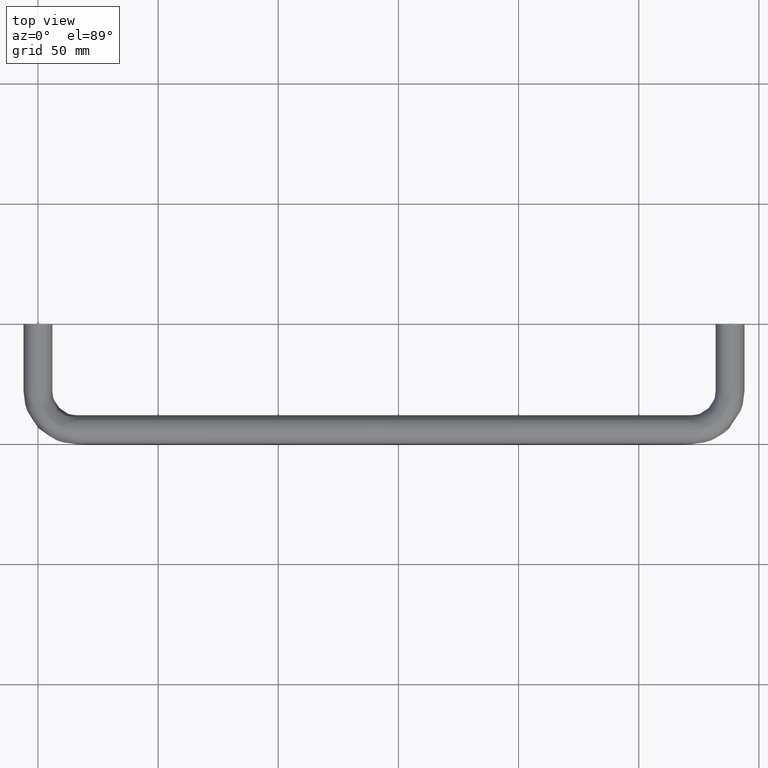
[diagram: clean part render]
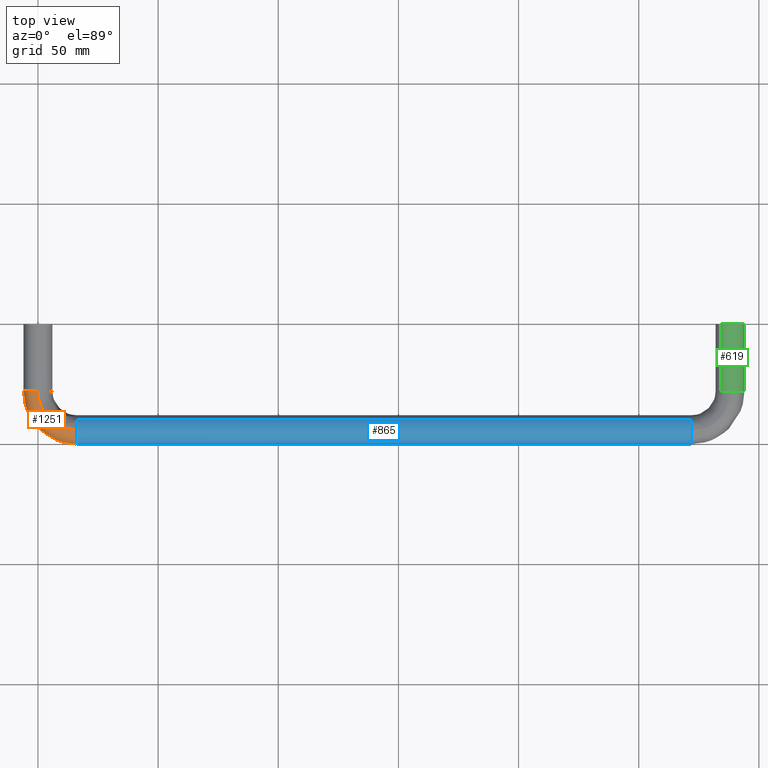
[diagram: same view with three faces highlighted in distinct colors, each labeled with its STEP entity id]
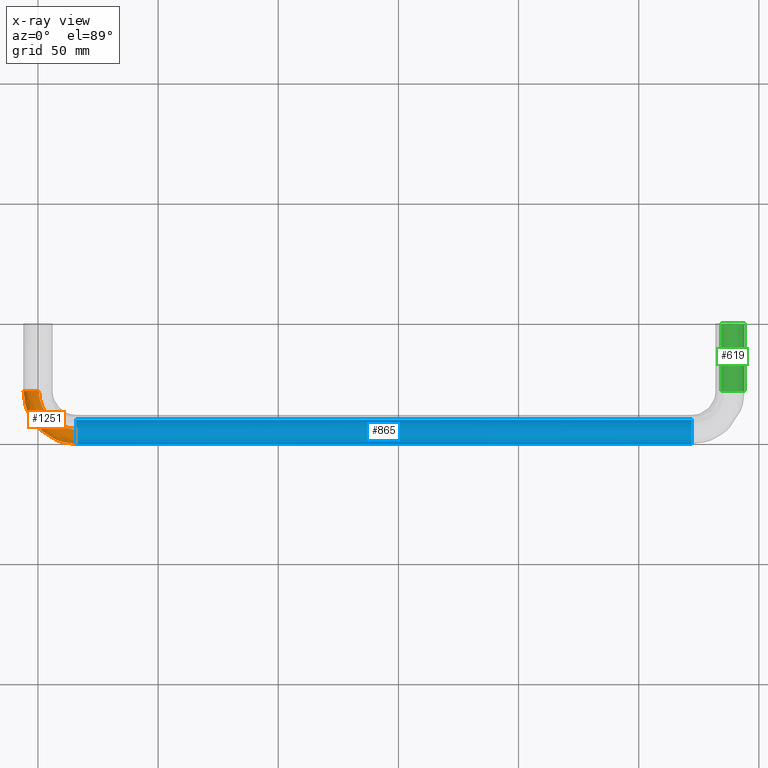
[diagram: x-ray of the same camera — body ghosted, the three highlighted faces saturated]
A machine part, top view with three faces highlighted in distinct colors.
The next image is the same camera in x-ray (body ghosted, the three faces saturated) — at least one of them is partly hidden behind the body in this view.
Their STEP definitions:

[orange] entity #1251 — the highlighted face is a freeform B-spline surface patch.
#661=CARTESIAN_POINT('',(15.999999999999989,-48.467994806515549,-4.004625127143617));
#662=VERTEX_POINT('',#661);
#668=CARTESIAN_POINT('',(15.999999997158200,-43.581600486216288,-5.985394042739838));
#669=VERTEX_POINT('',#668);
#670=CARTESIAN_POINT('',(15.999999997158199,-43.581600486216288,-5.985394042739839));
#671=CARTESIAN_POINT('',(16.000000000000004,-43.790545300404808,-6.0));
#672=CARTESIAN_POINT('',(16.0,-44.0,-6.0));
#673=CARTESIAN_POINT('',(16.000000000000004,-46.679557554470968,-5.999999999999999));
#674=CARTESIAN_POINT('',(15.999999999999986,-48.467994806515549,-4.004625127143617));
#682=(BOUNDED_CURVE()B_SPLINE_CURVE(2,(#670,#671,#672,#673,#674),.UNSPECIFIED.,.F.,.U.)B_SPLINE_CURVE_WITH_KNOTS((3,2,3),(0.237833686286240,0.250000000000000,0.383245959685825),.UNSPECIFIED.)CURVE()GEOMETRIC_REPRESENTATION_ITEM()RATIONAL_B_SPLINE_CURVE((0.972879875860633,0.985746276861130,1.0,0.843892647894924,0.854190687351880))REPRESENTATION_ITEM(''));
#683=EDGE_CURVE('',#669,#662,#682,.T.);
#817=CARTESIAN_POINT('',(15.999999998300160,-44.075396249737437,5.999526265091729));
#818=VERTEX_POINT('',#817);
#834=CARTESIAN_POINT('',(16.0,-49.999999999999993,0.0));
#835=VERTEX_POINT('',#834);
#836=CARTESIAN_POINT('',(16.0,-49.999999999999993,0.0));
#837=CARTESIAN_POINT('',(16.000000000000004,-49.999999999999986,5.925071558826640));
#838=CARTESIAN_POINT('',(15.999999998300162,-44.075396249737437,5.999526265091729));
#846=(BOUNDED_CURVE()B_SPLINE_CURVE(2,(#836,#837,#838),.UNSPECIFIED.,.F.,.U.)B_SPLINE_CURVE_WITH_KNOTS((3,3),(0.500000000000000,0.747784295309819),.UNSPECIFIED.)CURVE()GEOMETRIC_REPRESENTATION_ITEM()RATIONAL_B_SPLINE_CURVE((1.0,0.709702640701137,0.994854294235634))REPRESENTATION_ITEM(''));
#847=EDGE_CURVE('',#835,#818,#846,.T.);
#849=CARTESIAN_POINT('',(15.999999999999986,-48.467994806515549,-4.004625127143617));
#850=CARTESIAN_POINT('',(16.000000000000004,-49.999999999999993,-2.295353714534880));
#851=CARTESIAN_POINT('',(16.0,-49.999999999999993,0.0));
#859=(BOUNDED_CURVE()B_SPLINE_CURVE(2,(#849,#850,#851),.UNSPECIFIED.,.F.,.U.)B_SPLINE_CURVE_WITH_KNOTS((3,3),(0.383245959685825,0.500000000000000),.UNSPECIFIED.)CURVE()GEOMETRIC_REPRESENTATION_ITEM()RATIONAL_B_SPLINE_CURVE((0.854190687351880,0.863214133291623,1.0))REPRESENTATION_ITEM(''));
#860=EDGE_CURVE('',#662,#835,#859,.T.);
#884=CARTESIAN_POINT('',(-0.075396270194108,-28.000000006696570,5.999526264834650));
#885=VERTEX_POINT('',#884);
#942=CARTESIAN_POINT('',(-3.735087819832132,-28.0,-4.695648941109377));
#943=VERTEX_POINT('',#942);
#949=CARTESIAN_POINT('',(-5.999999999999996,-28.0,0.0));
#950=VERTEX_POINT('',#949);
#951=CARTESIAN_POINT('',(-3.735087819832132,-28.000000000000004,-4.695648941109377));
#952=CARTESIAN_POINT('',(-5.999999999999996,-27.999999999999996,-2.894056444895313));
#953=CARTESIAN_POINT('',(-5.999999999999996,-28.0,0.0));
#961=(BOUNDED_CURVE()B_SPLINE_CURVE(2,(#951,#952,#953),.UNSPECIFIED.,.F.,.U.)B_SPLINE_CURVE_WITH_KNOTS((3,3),(0.357863877391859,0.500000000000000),.UNSPECIFIED.)CURVE()GEOMETRIC_REPRESENTATION_ITEM()RATIONAL_B_SPLINE_CURVE((0.856305618643937,0.833477174158553,1.0))REPRESENTATION_ITEM(''));
#962=EDGE_CURVE('',#943,#950,#961,.T.);
#964=CARTESIAN_POINT('',(-5.999999999999996,-28.0,0.0));
#965=CARTESIAN_POINT('',(-5.999999999999996,-28.0,5.925071518417884));
#966=CARTESIAN_POINT('',(-0.075396270194108,-28.000000006696574,5.999526264834650));
#974=(BOUNDED_CURVE()B_SPLINE_CURVE(2,(#964,#965,#966),.UNSPECIFIED.,.F.,.U.)B_SPLINE_CURVE_WITH_KNOTS((3,3),(0.500000000000000,0.747784294110507),.UNSPECIFIED.)CURVE()GEOMETRIC_REPRESENTATION_ITEM()RATIONAL_B_SPLINE_CURVE((1.0,0.709702642106218,0.994854291475283))REPRESENTATION_ITEM(''));
#975=EDGE_CURVE('',#950,#885,#974,.T.);
#1013=CARTESIAN_POINT('',(0.418399511654267,-28.000000001695611,-5.985394042888693));
#1014=VERTEX_POINT('',#1013);
#1028=CARTESIAN_POINT('',(0.418399511654267,-28.000000001695611,-5.985394042888693));
#1029=CARTESIAN_POINT('',(0.209454697457947,-28.0,-6.0));
#1030=CARTESIAN_POINT('',(3.428898E-015,-28.0,-6.0));
#1031=CARTESIAN_POINT('',(-2.095293800538441,-28.0,-5.999999999999999));
#1032=CARTESIAN_POINT('',(-3.735087819832132,-28.000000000000004,-4.695648941109377));
#1040=(BOUNDED_CURVE()B_SPLINE_CURVE(2,(#1028,#1029,#1030,#1031,#1032),.UNSPECIFIED.,.F.,.U.)B_SPLINE_CURVE_WITH_KNOTS((3,2,3),(0.237833686408614,0.250000000000000,0.357863877391859),.UNSPECIFIED.)CURVE()GEOMETRIC_REPRESENTATION_ITEM()RATIONAL_B_SPLINE_CURVE((0.972879876119464,0.985746277004500,1.0,0.873629607027995,0.856305618643937))REPRESENTATION_ITEM(''));
#1041=EDGE_CURVE('',#1014,#943,#1040,.T.);
#1182=CARTESIAN_POINT('',(0.546684056710177,-26.922813434148562,-5.979047730731183));
#1183=CARTESIAN_POINT('',(-0.691927203376076,-44.691927661728442,-5.979047730731180));
#1184=CARTESIAN_POINT('',(17.077186990192139,-43.453315913710789,-5.979047730731184));
#1185=CARTESIAN_POINT('',(0.501269806441444,-26.919647795105952,-5.982230042808086));
#1186=CARTESIAN_POINT('',(-0.740981488052807,-44.740981947752175,-5.982230042808087));
#1187=CARTESIAN_POINT('',(17.080352630481794,-43.498730163892596,-5.982230042808089));
#1188=CARTESIAN_POINT('',(0.285231963537030,-26.904588693037091,-5.997368459328781));
#1189=CARTESIAN_POINT('',(-0.974335155328387,-44.974335621435536,-5.997368459328783));
#1190=CARTESIAN_POINT('',(17.095411738482944,-43.714768006383508,-5.997368459328781));
#1191=CARTESIAN_POINT('',(0.113943897119562,-26.892648912299236,-5.999526265222896));
#1192=CARTESIAN_POINT('',(-1.159352270486051,-45.159352741673686,-5.999526265222896));
#1193=CARTESIAN_POINT('',(17.107351523924276,-43.886056072473103,-5.999526265222895));
#1194=CARTESIAN_POINT('',(-5.871059703111108,-26.475459132552292,-6.074922504523007));
#1195=CARTESIAN_POINT('',(-7.624064748611073,-51.624065397316620,-6.074922504523005));
#1196=CARTESIAN_POINT('',(17.524541468016576,-49.871059661247941,-6.074922504523006));
#1197=CARTESIAN_POINT('',(-5.946273435613747,-26.470216295188671,-0.075396239300112));
#1198=CARTESIAN_POINT('',(-7.705306997992081,-51.705307648928503,-0.075396239300112));
#1199=CARTESIAN_POINT('',(17.529784307445532,-49.946273393606596,-0.075396239300112));
#1200=CARTESIAN_POINT('',(-6.021487168116381,-26.464973457825039,5.924130025922782));
#1201=CARTESIAN_POINT('',(-7.786549247373084,-51.786549900540393,5.924130025922781));
#1202=CARTESIAN_POINT('',(17.535027146874498,-50.021487125965294,5.924130025922783));
#1203=CARTESIAN_POINT('',(0.007550477112087,-26.885232668229197,6.000080985255792));
#1204=CARTESIAN_POINT('',(-1.274273315794397,-45.274273790137705,6.000080985255791));
#1205=CARTESIAN_POINT('',(17.114767770915851,-43.992449492276926,6.000080985255790));
#1206=CARTESIAN_POINT('',(0.051316947103911,-26.888283447342413,6.000632334505557));
#1207=CARTESIAN_POINT('',(-1.226998883968037,-45.226999357013220,6.000632334505557));
#1208=CARTESIAN_POINT('',(17.111716990600804,-43.948683022368868,6.000632334505555));
#1216=(BOUNDED_SURFACE()B_SPLINE_SURFACE(2,2,((#1182,#1185,#1188,#1191,#1194,#1197,#1200,#1203,#1206),(#1183,#1186,#1189,#1192,#1195,#1198,#1201,#1204,#1207),(#1184,#1187,#1190,#1193,#1196,#1199,#1202,#1205,#1208)),.UNSPECIFIED.,.F.,.F.,.U.)B_SPLINE_SURFACE_WITH_KNOTS((3,3),(3,1,2,2,1,3),(0.0,40.091364059811198),(0.0,0.103626067512417,0.501270708166745,10.442396205121030,20.383521702075310,20.487274607661259),.UNSPECIFIED.)GEOMETRIC_REPRESENTATION_ITEM()RATIONAL_B_SPLINE_SURFACE(((0.896240631281229,0.898830865331659,0.911360612797192,0.922164430830710,0.652068722409428,0.922164430830710,0.652068722409428,0.924983348522031,0.927802266213351),(0.588135470606115,0.589835246837027,0.598057579841146,0.605147314876259,0.427903769965834,0.605147314876259,0.427903769965834,0.606997159019806,0.608847003163354),(0.896240642493540,0.898830876576375,0.911360624198660,0.922164442367337,0.652068730567055,0.922164442367337,0.652068730567055,0.924983360093924,0.927802277820511)))REPRESENTATION_ITEM('')SURFACE());
#1217=ORIENTED_EDGE('',*,*,#683,.T.);
#1218=ORIENTED_EDGE('',*,*,#860,.T.);
#1219=ORIENTED_EDGE('',*,*,#847,.T.);
#1220=CARTESIAN_POINT('',(-0.075396270194108,-28.000000006696570,5.999526264834651));
#1221=CARTESIAN_POINT('',(-0.075396225906964,-44.075396235900442,5.999526265222895));
#1222=CARTESIAN_POINT('',(15.999999998300167,-44.075396249737437,5.999526265091729));
#1230=(BOUNDED_CURVE()B_SPLINE_CURVE(2,(#1220,#1221,#1222),.UNSPECIFIED.,.F.,.U.)B_SPLINE_CURVE_WITH_KNOTS((3,3),(-1.744561812438314,-0.255438186907095),.UNSPECIFIED.)CURVE()GEOMETRIC_REPRESENTATION_ITEM()RATIONAL_B_SPLINE_CURVE((0.894678509733661,0.632633241626431,0.894678509964042))REPRESENTATION_ITEM(''));
#1231=EDGE_CURVE('',#885,#818,#1230,.T.);
#1232=ORIENTED_EDGE('',*,*,#1231,.F.);
#1233=ORIENTED_EDGE('',*,*,#975,.F.);
#1234=ORIENTED_EDGE('',*,*,#962,.F.);
#1235=ORIENTED_EDGE('',*,*,#1041,.F.);
#1236=CARTESIAN_POINT('',(0.418399511654267,-28.000000001695614,-5.985394042888692));
#1237=CARTESIAN_POINT('',(0.418399512843871,-43.581600484863735,-5.985394043042593));
#1238=CARTESIAN_POINT('',(15.999999997158193,-43.581600486216296,-5.985394042739838));
#1246=(BOUNDED_CURVE()B_SPLINE_CURVE(2,(#1236,#1237,#1238),.UNSPECIFIED.,.F.,.U.)B_SPLINE_CURVE_WITH_KNOTS((3,3),(-1.744561813086419,-0.255438187068496),.UNSPECIFIED.)CURVE()GEOMETRIC_REPRESENTATION_ITEM()RATIONAL_B_SPLINE_CURVE((0.874553433334360,0.618402663381941,0.874553433281065))REPRESENTATION_ITEM(''));
#1247=EDGE_CURVE('',#1014,#669,#1246,.T.);
#1248=ORIENTED_EDGE('',*,*,#1247,.T.);
#1249=EDGE_LOOP('',(#1217,#1218,#1219,#1232,#1233,#1234,#1235,#1248));
#1250=FACE_OUTER_BOUND('',#1249,.T.);
#1251=ADVANCED_FACE('',(#1250),#1216,.T.);

[blue] entity #865 — the highlighted face is a freeform B-spline surface patch.
#644=CARTESIAN_POINT('',(272.0,-48.467994806515520,-4.004625127143624));
#645=VERTEX_POINT('',#644);
#661=CARTESIAN_POINT('',(15.999999999999989,-48.467994806515549,-4.004625127143617));
#662=VERTEX_POINT('',#661);
#663=CARTESIAN_POINT('',(15.999999999999989,-48.467994806515549,-4.004625127143617));
#664=CARTESIAN_POINT('',(272.0,-48.467994806515520,-4.004625127143624));
#665=QUASI_UNIFORM_CURVE('',1,(#663,#664),.UNSPECIFIED.,.F.,.U.);
#666=EDGE_CURVE('',#662,#645,#665,.T.);
#700=CARTESIAN_POINT('',(16.0,-40.024279710704569,4.493734324733120));
#701=VERTEX_POINT('',#700);
#715=CARTESIAN_POINT('',(272.0,-40.024279710704540,4.493734324733110));
#716=VERTEX_POINT('',#715);
#717=CARTESIAN_POINT('',(16.0,-40.024279710704569,4.493734324733120));
#718=CARTESIAN_POINT('',(272.0,-40.024279710704540,4.493734324733110));
#719=QUASI_UNIFORM_CURVE('',1,(#717,#718),.UNSPECIFIED.,.F.,.U.);
#720=EDGE_CURVE('',#701,#716,#719,.T.);
#753=CARTESIAN_POINT('',(9.599999997004861,-40.024279710705578,4.493734324734011));
#754=CARTESIAN_POINT('',(9.599999997004861,-44.518014035439599,8.469454614028436));
#755=CARTESIAN_POINT('',(9.599999997004861,-48.493734324734007,3.975720289294424));
#756=CARTESIAN_POINT('',(9.599999997004860,-52.034080247159984,-0.025912832602382));
#757=CARTESIAN_POINT('',(9.599999997004861,-48.467994806516181,-4.004625127142923));
#758=CARTESIAN_POINT('',(278.560000003448520,-40.024279710705542,4.493734324734011));
#759=CARTESIAN_POINT('',(278.560000003448580,-44.518014035439549,8.469454614028436));
#760=CARTESIAN_POINT('',(278.560000003448520,-48.493734324733978,3.975720289294424));
#761=CARTESIAN_POINT('',(278.560000003448520,-52.034080247159956,-0.025912832602382));
#762=CARTESIAN_POINT('',(278.560000003448520,-48.467994806516131,-4.004625127142923));
#770=(BOUNDED_SURFACE()B_SPLINE_SURFACE(2,1,((#753,#758),(#754,#759),(#755,#760),(#756,#761),(#757,#762)),.UNSPECIFIED.,.F.,.F.,.U.)B_SPLINE_SURFACE_WITH_KNOTS((3,2,3),(2,2),(0.0,9.941125496954280,19.086960954152222),(0.0,268.960000006443690),.UNSPECIFIED.)GEOMETRIC_REPRESENTATION_ITEM()RATIONAL_B_SPLINE_SURFACE(((1.0,1.0),(0.707106781186548,0.707106781186548),(1.0,1.0),(0.730538238691624,0.730538238691624),(0.956886118190660,0.956886118190660)))REPRESENTATION_ITEM('')SURFACE());
#771=CARTESIAN_POINT('',(272.0,-49.999999999999993,0.0));
#772=VERTEX_POINT('',#771);
#773=CARTESIAN_POINT('',(272.0,-48.467994806515520,-4.004625127143624));
#774=CARTESIAN_POINT('',(272.000000000000060,-49.999999999999993,-2.295353714534892));
#775=CARTESIAN_POINT('',(272.0,-49.999999999999993,0.0));
#783=(BOUNDED_CURVE()B_SPLINE_CURVE(2,(#773,#774,#775),.UNSPECIFIED.,.F.,.U.)B_SPLINE_CURVE_WITH_KNOTS((3,3),(0.383245959685825,0.500000000000000),.UNSPECIFIED.)CURVE()GEOMETRIC_REPRESENTATION_ITEM()RATIONAL_B_SPLINE_CURVE((0.854190687351879,0.863214133291622,1.0))REPRESENTATION_ITEM(''));
#784=EDGE_CURVE('',#645,#772,#783,.T.);
#785=ORIENTED_EDGE('',*,*,#784,.T.);
#786=CARTESIAN_POINT('',(272.000000003291400,-44.418399524233124,5.985394042009387));
#787=VERTEX_POINT('',#786);
#788=CARTESIAN_POINT('',(272.0,-49.999999999999993,0.0));
#789=CARTESIAN_POINT('',(272.0,-49.999999999999986,5.595221055898364));
#790=CARTESIAN_POINT('',(272.000000003291400,-44.418399524233124,5.985394042009387));
#798=(BOUNDED_CURVE()B_SPLINE_CURVE(2,(#788,#789,#790),.UNSPECIFIED.,.F.,.U.)B_SPLINE_CURVE_WITH_KNOTS((3,3),(0.500000000000000,0.737833685685740),.UNSPECIFIED.)CURVE()GEOMETRIC_REPRESENTATION_ITEM()RATIONAL_B_SPLINE_CURVE((1.0,0.721360505028947,0.972879874590524))REPRESENTATION_ITEM(''));
#799=EDGE_CURVE('',#772,#787,#798,.T.);
#800=ORIENTED_EDGE('',*,*,#799,.T.);
#801=CARTESIAN_POINT('',(272.000000003291290,-44.418399524233124,5.985394042009387));
#802=CARTESIAN_POINT('',(272.000000000000110,-44.209454710082873,6.0));
#803=CARTESIAN_POINT('',(272.0,-44.0,6.0));
#804=CARTESIAN_POINT('',(272.000000000000060,-41.726803347826575,6.0));
#805=CARTESIAN_POINT('',(272.0,-40.024279710704540,4.493734324733110));
#813=(BOUNDED_CURVE()B_SPLINE_CURVE(2,(#801,#802,#803,#804,#805),.UNSPECIFIED.,.F.,.U.)B_SPLINE_CURVE_WITH_KNOTS((3,2,3),(0.737833685685739,0.750000000000000,0.865779888059640),.UNSPECIFIED.)CURVE()GEOMETRIC_REPRESENTATION_ITEM()RATIONAL_B_SPLINE_CURVE((0.972879874590522,0.985746276157600,1.0,0.864355423649403,0.854350158224962))REPRESENTATION_ITEM(''));
#814=EDGE_CURVE('',#787,#716,#813,.T.);
#815=ORIENTED_EDGE('',*,*,#814,.T.);
#816=ORIENTED_EDGE('',*,*,#720,.F.);
#817=CARTESIAN_POINT('',(15.999999998300160,-44.075396249737437,5.999526265091729));
#818=VERTEX_POINT('',#817);
#819=CARTESIAN_POINT('',(15.999999998300163,-44.075396249737437,5.999526265091729));
#820=CARTESIAN_POINT('',(16.000000000000004,-44.037699618389894,6.0));
#821=CARTESIAN_POINT('',(16.0,-44.0,6.0));
#822=CARTESIAN_POINT('',(16.000000000000004,-41.726803347826575,6.000000000000001));
#823=CARTESIAN_POINT('',(16.000000000000004,-40.024279710704569,4.493734324733120));
#831=(BOUNDED_CURVE()B_SPLINE_CURVE(2,(#819,#820,#821,#822,#823),.UNSPECIFIED.,.F.,.U.)B_SPLINE_CURVE_WITH_KNOTS((3,2,3),(0.747784295309819,0.750000000000000,0.865779888059639),.UNSPECIFIED.)CURVE()GEOMETRIC_REPRESENTATION_ITEM()RATIONAL_B_SPLINE_CURVE((0.994854294235636,0.997404140485412,1.0,0.864355423649404,0.854350158224962))REPRESENTATION_ITEM(''));
#832=EDGE_CURVE('',#818,#701,#831,.T.);
#833=ORIENTED_EDGE('',*,*,#832,.F.);
#834=CARTESIAN_POINT('',(16.0,-49.999999999999993,0.0));
#835=VERTEX_POINT('',#834);
#836=CARTESIAN_POINT('',(16.0,-49.999999999999993,0.0));
#837=CARTESIAN_POINT('',(16.000000000000004,-49.999999999999986,5.925071558826640));
#838=CARTESIAN_POINT('',(15.999999998300162,-44.075396249737437,5.999526265091729));
#846=(BOUNDED_CURVE()B_SPLINE_CURVE(2,(#836,#837,#838),.UNSPECIFIED.,.F.,.U.)B_SPLINE_CURVE_WITH_KNOTS((3,3),(0.500000000000000,0.747784295309819),.UNSPECIFIED.)CURVE()GEOMETRIC_REPRESENTATION_ITEM()RATIONAL_B_SPLINE_CURVE((1.0,0.709702640701137,0.994854294235634))REPRESENTATION_ITEM(''));
#847=EDGE_CURVE('',#835,#818,#846,.T.);
#848=ORIENTED_EDGE('',*,*,#847,.F.);
#849=CARTESIAN_POINT('',(15.999999999999986,-48.467994806515549,-4.004625127143617));
#850=CARTESIAN_POINT('',(16.000000000000004,-49.999999999999993,-2.295353714534880));
#851=CARTESIAN_POINT('',(16.0,-49.999999999999993,0.0));
#859=(BOUNDED_CURVE()B_SPLINE_CURVE(2,(#849,#850,#851),.UNSPECIFIED.,.F.,.U.)B_SPLINE_CURVE_WITH_KNOTS((3,3),(0.383245959685825,0.500000000000000),.UNSPECIFIED.)CURVE()GEOMETRIC_REPRESENTATION_ITEM()RATIONAL_B_SPLINE_CURVE((0.854190687351880,0.863214133291623,1.0))REPRESENTATION_ITEM(''));
#860=EDGE_CURVE('',#662,#835,#859,.T.);
#861=ORIENTED_EDGE('',*,*,#860,.F.);
#862=ORIENTED_EDGE('',*,*,#666,.T.);
#863=EDGE_LOOP('',(#785,#800,#815,#816,#833,#848,#861,#862));
#864=FACE_OUTER_BOUND('',#863,.T.);
#865=ADVANCED_FACE('',(#864),#770,.T.);

[green] entity #619 — the highlighted face is a freeform B-spline surface patch.
#428=CARTESIAN_POINT('',(291.735087819832070,-28.0,-4.695648941109387));
#429=VERTEX_POINT('',#428);
#460=CARTESIAN_POINT('',(284.264912180167930,-28.0,4.695648941109382));
#461=VERTEX_POINT('',#460);
#475=CARTESIAN_POINT('',(284.264912180169920,3.394507E-014,4.695648941111008));
#476=VERTEX_POINT('',#475);
#477=CARTESIAN_POINT('',(284.264912180167930,-28.0,4.695648941109382));
#478=CARTESIAN_POINT('',(284.264912180169920,3.394507E-014,4.695648941111008));
#479=QUASI_UNIFORM_CURVE('',1,(#477,#478),.UNSPECIFIED.,.F.,.U.);
#480=EDGE_CURVE('',#461,#476,#479,.T.);
#497=CARTESIAN_POINT('',(291.735087819830080,3.450018E-014,-4.695648941110990));
#498=VERTEX_POINT('',#497);
#514=CARTESIAN_POINT('',(291.735087819832070,-28.0,-4.695648941109387));
#515=CARTESIAN_POINT('',(291.735087819830080,3.450018E-014,-4.695648941110990));
#516=QUASI_UNIFORM_CURVE('',1,(#514,#515),.UNSPECIFIED.,.F.,.U.);
#517=EDGE_CURVE('',#429,#498,#516,.T.);
#522=CARTESIAN_POINT('',(284.264912180174290,-28.700000002556170,4.695648941114484));
#523=CARTESIAN_POINT('',(288.960561121288830,-28.700000002556166,8.430736760940201));
#524=CARTESIAN_POINT('',(292.695648941114480,-28.700000002556170,3.735087819825715));
#525=CARTESIAN_POINT('',(296.430736760940190,-28.700000002556166,-0.960561121288768));
#526=CARTESIAN_POINT('',(291.735087819825710,-28.700000002556170,-4.695648941114484));
#527=CARTESIAN_POINT('',(284.264912180174290,0.717500000063939,4.695648941114484));
#528=CARTESIAN_POINT('',(288.960561121288830,0.717500000063939,8.430736760940201));
#529=CARTESIAN_POINT('',(292.695648941114480,0.717500000063939,3.735087819825715));
#530=CARTESIAN_POINT('',(296.430736760940190,0.717500000063940,-0.960561121288768));
#531=CARTESIAN_POINT('',(291.735087819825710,0.717500000063940,-4.695648941114484));
#539=(BOUNDED_SURFACE()B_SPLINE_SURFACE(2,1,((#522,#527),(#523,#528),(#524,#529),(#525,#530),(#526,#531)),.UNSPECIFIED.,.F.,.F.,.U.)B_SPLINE_SURFACE_WITH_KNOTS((3,2,3),(2,2),(0.0,9.941125496954339,19.882250993908681),(0.0,29.417500002620109),.UNSPECIFIED.)GEOMETRIC_REPRESENTATION_ITEM()RATIONAL_B_SPLINE_SURFACE(((1.0,1.0),(0.707106781186548,0.707106781186548),(1.0,1.0),(0.707106781186548,0.707106781186548),(1.0,1.0)))REPRESENTATION_ITEM('')SURFACE());
#540=CARTESIAN_POINT('',(294.0,-28.0,0.0));
#541=VERTEX_POINT('',#540);
#542=CARTESIAN_POINT('',(291.735087819832070,-27.999999999999996,-4.695648941109387));
#543=CARTESIAN_POINT('',(294.000000000000060,-28.000000000000007,-2.894056444895332));
#544=CARTESIAN_POINT('',(294.0,-28.0,0.0));
#552=(BOUNDED_CURVE()B_SPLINE_CURVE(2,(#542,#543,#544),.UNSPECIFIED.,.F.,.U.)B_SPLINE_CURVE_WITH_KNOTS((3,3),(0.357863877391858,0.500000000000000),.UNSPECIFIED.)CURVE()GEOMETRIC_REPRESENTATION_ITEM()RATIONAL_B_SPLINE_CURVE((0.856305618643938,0.833477174158552,1.0))REPRESENTATION_ITEM(''));
#553=EDGE_CURVE('',#429,#541,#552,.T.);
#554=ORIENTED_EDGE('',*,*,#553,.F.);
#555=ORIENTED_EDGE('',*,*,#517,.T.);
#556=CARTESIAN_POINT('',(294.0,3.469447E-014,0.0));
#557=VERTEX_POINT('',#556);
#558=CARTESIAN_POINT('',(291.735087819830140,3.450018E-014,-4.695648941110990));
#559=CARTESIAN_POINT('',(294.000000000000060,3.469447E-014,-2.894056444898505));
#560=CARTESIAN_POINT('',(294.0,3.469447E-014,0.0));
#568=(BOUNDED_CURVE()B_SPLINE_CURVE(2,(#558,#559,#560),.UNSPECIFIED.,.F.,.U.)B_SPLINE_CURVE_WITH_KNOTS((3,3),(0.357863877391729,0.500000000000000),.UNSPECIFIED.)CURVE()GEOMETRIC_REPRESENTATION_ITEM()RATIONAL_B_SPLINE_CURVE((0.856305618643979,0.833477174158400,1.0))REPRESENTATION_ITEM(''));
#569=EDGE_CURVE('',#498,#557,#568,.T.);
#570=ORIENTED_EDGE('',*,*,#569,.T.);
#571=CARTESIAN_POINT('',(294.0,3.469447E-014,0.0));
#572=CARTESIAN_POINT('',(294.0,3.469447E-014,6.0));
#573=CARTESIAN_POINT('',(288.0,3.469447E-014,6.0));
#574=CARTESIAN_POINT('',(285.904706199464500,3.469447E-014,6.0));
#575=CARTESIAN_POINT('',(284.264912180169860,3.394507E-014,4.695648941111008));
#583=(BOUNDED_CURVE()B_SPLINE_CURVE(2,(#571,#572,#573,#574,#575),.UNSPECIFIED.,.F.,.U.)B_SPLINE_CURVE_WITH_KNOTS((3,2,3),(0.500000000000000,0.750000000000000,0.857863877391726),.UNSPECIFIED.)CURVE()GEOMETRIC_REPRESENTATION_ITEM()RATIONAL_B_SPLINE_CURVE((1.0,0.707106781186548,1.0,0.873629607028151,0.856305618643980))REPRESENTATION_ITEM(''));
#584=EDGE_CURVE('',#557,#476,#583,.T.);
#585=ORIENTED_EDGE('',*,*,#584,.T.);
#586=ORIENTED_EDGE('',*,*,#480,.F.);
#587=CARTESIAN_POINT('',(288.418399516672080,-28.000000001374751,5.985394042537922));
#588=VERTEX_POINT('',#587);
#589=CARTESIAN_POINT('',(288.418399516672140,-28.000000001374751,5.985394042537922));
#590=CARTESIAN_POINT('',(288.209454702494270,-28.000000000000004,6.0));
#591=CARTESIAN_POINT('',(288.0,-28.0,6.0));
#592=CARTESIAN_POINT('',(285.904706199461540,-27.999999999999993,5.999999999999999));
#593=CARTESIAN_POINT('',(284.264912180167810,-28.000000000000007,4.695648941109382));
#601=(BOUNDED_CURVE()B_SPLINE_CURVE(2,(#589,#590,#591,#592,#593),.UNSPECIFIED.,.F.,.U.)B_SPLINE_CURVE_WITH_KNOTS((3,2,3),(0.737833686120246,0.750000000000000,0.857863877391860),.UNSPECIFIED.)CURVE()GEOMETRIC_REPRESENTATION_ITEM()RATIONAL_B_SPLINE_CURVE((0.972879875509541,0.985746276666656,1.0,0.873629607027995,0.856305618643937))REPRESENTATION_ITEM(''));
#602=EDGE_CURVE('',#588,#461,#601,.T.);
#603=ORIENTED_EDGE('',*,*,#602,.F.);
#604=CARTESIAN_POINT('',(294.0,-28.0,0.0));
#605=CARTESIAN_POINT('',(294.000000000000060,-28.000000000000007,5.595221070068924));
#606=CARTESIAN_POINT('',(288.418399516672140,-28.000000001374747,5.985394042537923));
#614=(BOUNDED_CURVE()B_SPLINE_CURVE(2,(#604,#605,#606),.UNSPECIFIED.,.F.,.U.)B_SPLINE_CURVE_WITH_KNOTS((3,3),(0.500000000000000,0.737833686120246),.UNSPECIFIED.)CURVE()GEOMETRIC_REPRESENTATION_ITEM()RATIONAL_B_SPLINE_CURVE((1.0,0.721360504519892,0.972879875509541))REPRESENTATION_ITEM(''));
#615=EDGE_CURVE('',#541,#588,#614,.T.);
#616=ORIENTED_EDGE('',*,*,#615,.F.);
#617=EDGE_LOOP('',(#554,#555,#570,#585,#586,#603,#616));
#618=FACE_OUTER_BOUND('',#617,.T.);
#619=ADVANCED_FACE('',(#618),#539,.T.);